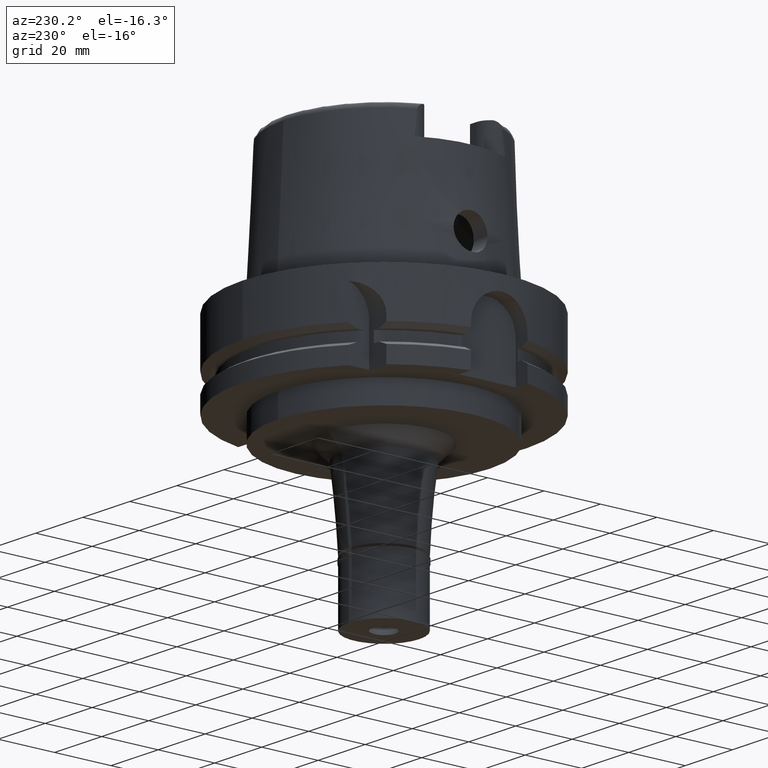
[diagram: clean part render]
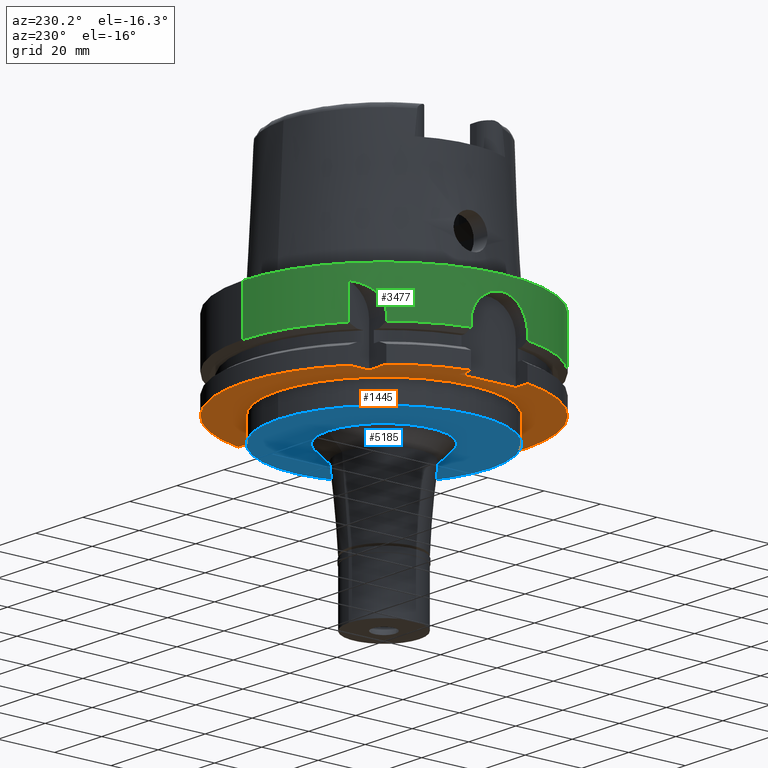
[diagram: same view with three faces highlighted in distinct colors, each labeled with its STEP entity id]
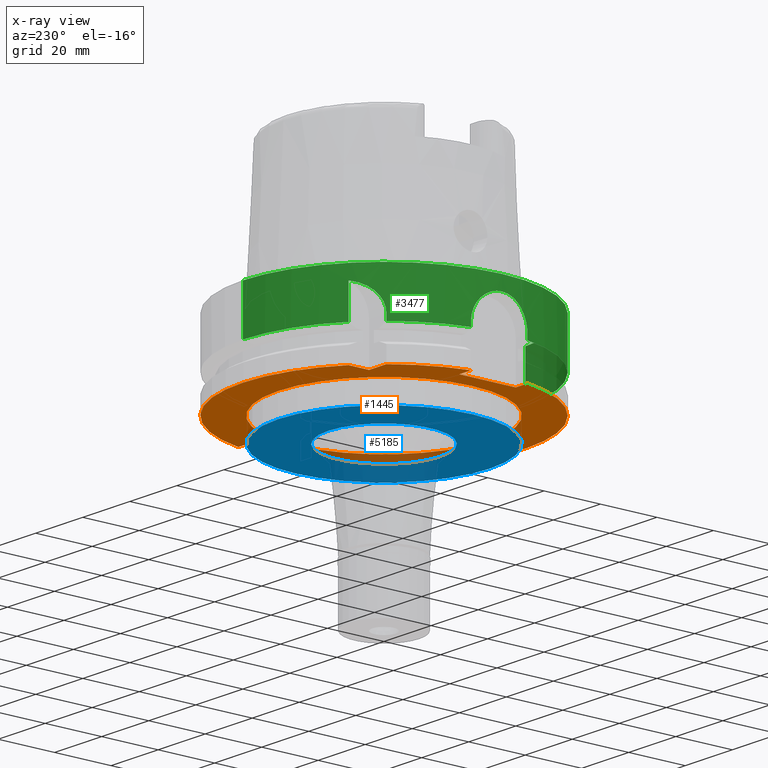
[diagram: x-ray of the same camera — body ghosted, the three highlighted faces saturated]
A machine part, auxiliary view with three faces highlighted in distinct colors.
The next image is the same camera in x-ray (body ghosted, the three faces saturated) — at least one of them is partly hidden behind the body in this view.
Their STEP definitions:

[orange] entity #1445 — the highlighted planar face has unit normal (0, 0, 1).
#19 = ORIENTED_EDGE ( 'NONE', *, *, #3860, .T. ) ;
#111 = CARTESIAN_POINT ( 'NONE',  ( 48.77499359303000404, -11.00000000000000000, -29.00000000000000000 ) ) ;
#133 = CIRCLE ( 'NONE', #1492, 50.00000000000000000 ) ;
#141 = CARTESIAN_POINT ( 'NONE',  ( -48.98979485565999425, 10.00000000000000000, -29.00000000000000000 ) ) ;
#150 = VECTOR ( 'NONE', #4453, 1000.000000000000000 ) ;
#195 = EDGE_CURVE ( 'NONE', #1272, #3100, #2616, .T. ) ;
#205 = ORIENTED_EDGE ( 'NONE', *, *, #685, .T. ) ;
#264 = EDGE_CURVE ( 'NONE', #3100, #4477, #966, .T. ) ;
#420 = EDGE_CURVE ( 'NONE', #4766, #2049, #4843, .T. ) ;
#426 = AXIS2_PLACEMENT_3D ( 'NONE', #4104, #5421, #1554 ) ;
#459 = DIRECTION ( 'NONE',  ( 0.0000000000000000000, 1.000000000000000000, 0.0000000000000000000 ) ) ;
#493 = VERTEX_POINT ( 'NONE', #2366 ) ;
#525 = CARTESIAN_POINT ( 'NONE',  ( -31.50000000000000000, 38.82975663071000128, -29.00000000000000000 ) ) ;
#565 = CARTESIAN_POINT ( 'NONE',  ( -31.50000000000000000, 31.50000000000000000, -29.00000000000000000 ) ) ;
#601 = CARTESIAN_POINT ( 'NONE',  ( 0.0000000000000000000, 37.50000000000000000, -29.00000000000000000 ) ) ;
#685 = EDGE_CURVE ( 'NONE', #777, #1690, #5562, .T. ) ;
#691 = CARTESIAN_POINT ( 'NONE',  ( 44.00000000000000000, -11.00000000000000000, -29.00000000000000000 ) ) ;
#694 = CIRCLE ( 'NONE', #3059, 37.50000000000000000 ) ;
#777 = VERTEX_POINT ( 'NONE', #5156 ) ;
#818 = DIRECTION ( 'NONE',  ( 0.0000000000000000000, 0.0000000000000000000, 1.000000000000000000 ) ) ;
#963 = CARTESIAN_POINT ( 'NONE',  ( 44.00000000000000000, 11.00000000000000000, -29.00000000000000000 ) ) ;
#966 = CIRCLE ( 'NONE', #426, 50.00000000000000000 ) ;
#1050 = VERTEX_POINT ( 'NONE', #2013 ) ;
#1054 = CARTESIAN_POINT ( 'NONE',  ( 0.0000000000000000000, 0.0000000000000000000, -29.00000000000000000 ) ) ;
#1126 = DIRECTION ( 'NONE',  ( 0.0000000000000000000, -1.000000000000000000, 0.0000000000000000000 ) ) ;
#1143 = CARTESIAN_POINT ( 'NONE',  ( 0.0000000000000000000, 0.0000000000000000000, -29.00000000000000000 ) ) ;
#1164 = VERTEX_POINT ( 'NONE', #601 ) ;
#1200 = EDGE_CURVE ( 'NONE', #493, #1978, #5333, .T. ) ;
#1272 = VERTEX_POINT ( 'NONE', #4079 ) ;
#1445 = ADVANCED_FACE ( 'NONE', ( #5454, #1472 ), #2348, .F. ) ;
#1472 = FACE_BOUND ( 'NONE', #4824, .T. ) ;
#1492 = AXIS2_PLACEMENT_3D ( 'NONE', #1143, #1592, #1920 ) ;
#1532 = DIRECTION ( 'NONE',  ( 0.0000000000000000000, 0.0000000000000000000, 1.000000000000000000 ) ) ;
#1554 = DIRECTION ( 'NONE',  ( 0.0000000000000000000, -1.000000000000000000, 0.0000000000000000000 ) ) ;
#1571 = CIRCLE ( 'NONE', #4408, 50.00000000000000711 ) ;
#1592 = DIRECTION ( 'NONE',  ( 0.0000000000000000000, 0.0000000000000000000, 1.000000000000000000 ) ) ;
#1620 = LINE ( 'NONE', #5104, #3873 ) ;
#1651 = CARTESIAN_POINT ( 'NONE',  ( 44.00000000000000000, -11.00000000000000000, -29.00000000000000000 ) ) ;
#1690 = VERTEX_POINT ( 'NONE', #141 ) ;
#1696 = VECTOR ( 'NONE', #4049, 1000.000000000000000 ) ;
#1697 = CARTESIAN_POINT ( 'NONE',  ( -44.00000000000000000, -10.00000000000000000, -29.00000000000000000 ) ) ;
#1722 = DIRECTION ( 'NONE',  ( 0.0000000000000000000, 1.000000000000000000, 0.0000000000000000000 ) ) ;
#1771 = DIRECTION ( 'NONE',  ( 1.000000000000000000, -1.785659532940000023E-14, 0.0000000000000000000 ) ) ;
#1813 = LINE ( 'NONE', #1697, #2026 ) ;
#1854 = EDGE_LOOP ( 'NONE', ( #3029, #2029, #3888, #19, #4299, #2805, #4123, #205, #3917, #3272, #3159 ) ) ;
#1920 = DIRECTION ( 'NONE',  ( 0.0000000000000000000, 1.000000000000000000, 0.0000000000000000000 ) ) ;
#1960 = AXIS2_PLACEMENT_3D ( 'NONE', #1054, #1532, #2784 ) ;
#1978 = VERTEX_POINT ( 'NONE', #525 ) ;
#2013 = CARTESIAN_POINT ( 'NONE',  ( 48.77499359303000404, 11.00000000000000000, -29.00000000000000000 ) ) ;
#2026 = VECTOR ( 'NONE', #1722, 1000.000000000000000 ) ;
#2029 = ORIENTED_EDGE ( 'NONE', *, *, #5385, .F. ) ;
#2049 = VERTEX_POINT ( 'NONE', #1651 ) ;
#2225 = VECTOR ( 'NONE', #5269, 1000.000000000000000 ) ;
#2348 = PLANE ( 'NONE',  #1960 ) ;
#2357 = CARTESIAN_POINT ( 'NONE',  ( -48.98979485565999425, -10.00000000000000000, -29.00000000000000000 ) ) ;
#2366 = CARTESIAN_POINT ( 'NONE',  ( -31.50000000000000000, 31.50000000000000000, -29.00000000000000000 ) ) ;
#2394 = DIRECTION ( 'NONE',  ( 0.0000000000000000000, 0.0000000000000000000, -1.000000000000000000 ) ) ;
#2474 = VERTEX_POINT ( 'NONE', #5445 ) ;
#2537 = DIRECTION ( 'NONE',  ( -0.7765951326141738997, 0.6299999999999789102, 0.0000000000000000000 ) ) ;
#2616 = LINE ( 'NONE', #4375, #150 ) ;
#2784 = DIRECTION ( 'NONE',  ( 1.000000000000000000, 0.0000000000000000000, 0.0000000000000000000 ) ) ;
#2805 = ORIENTED_EDGE ( 'NONE', *, *, #195, .F. ) ;
#2900 = DIRECTION ( 'NONE',  ( -1.000000000000000000, -4.798503851105999980E-14, 0.0000000000000000000 ) ) ;
#2916 = CARTESIAN_POINT ( 'NONE',  ( 0.0000000000000000000, 0.0000000000000000000, -29.00000000000000000 ) ) ;
#2938 = VERTEX_POINT ( 'NONE', #2981 ) ;
#2944 = EDGE_CURVE ( 'NONE', #2474, #1690, #1571, .T. ) ;
#2952 = DIRECTION ( 'NONE',  ( -1.000000000000000000, 4.627973610177000155E-14, 0.0000000000000000000 ) ) ;
#2956 = VECTOR ( 'NONE', #5484, 1000.000000000000000 ) ;
#2981 = CARTESIAN_POINT ( 'NONE',  ( 0.0000000000000000000, -37.50000000000000000, -29.00000000000000000 ) ) ;
#3029 = ORIENTED_EDGE ( 'NONE', *, *, #3402, .F. ) ;
#3047 = VECTOR ( 'NONE', #1771, 1000.000000000000000 ) ;
#3059 = AXIS2_PLACEMENT_3D ( 'NONE', #2916, #2394, #1126 ) ;
#3100 = VERTEX_POINT ( 'NONE', #2357 ) ;
#3139 = CIRCLE ( 'NONE', #4791, 37.50000000000000000 ) ;
#3159 = ORIENTED_EDGE ( 'NONE', *, *, #1200, .T. ) ;
#3272 = ORIENTED_EDGE ( 'NONE', *, *, #4064, .F. ) ;
#3369 = ORIENTED_EDGE ( 'NONE', *, *, #4929, .F. ) ;
#3402 = EDGE_CURVE ( 'NONE', #1050, #1978, #133, .T. ) ;
#3462 = DIRECTION ( 'NONE',  ( 0.0000000000000000000, 0.0000000000000000000, -1.000000000000000000 ) ) ;
#3586 = CARTESIAN_POINT ( 'NONE',  ( 44.00000000000000000, 11.00000000000000000, -29.00000000000000000 ) ) ;
#3614 = EDGE_CURVE ( 'NONE', #1272, #777, #1813, .T. ) ;
#3860 = EDGE_CURVE ( 'NONE', #2049, #4477, #5428, .T. ) ;
#3873 = VECTOR ( 'NONE', #2900, 1000.000000000000000 ) ;
#3888 = ORIENTED_EDGE ( 'NONE', *, *, #420, .T. ) ;
#3917 = ORIENTED_EDGE ( 'NONE', *, *, #2944, .F. ) ;
#4049 = DIRECTION ( 'NONE',  ( 4.798503851105999980E-14, 1.000000000000000000, 0.0000000000000000000 ) ) ;
#4064 = EDGE_CURVE ( 'NONE', #493, #2474, #1620, .T. ) ;
#4079 = CARTESIAN_POINT ( 'NONE',  ( -44.00000000000000000, -10.00000000000000000, -29.00000000000000000 ) ) ;
#4104 = CARTESIAN_POINT ( 'NONE',  ( 0.0000000000000000000, 0.0000000000000000000, -29.00000000000000000 ) ) ;
#4123 = ORIENTED_EDGE ( 'NONE', *, *, #3614, .T. ) ;
#4233 = ORIENTED_EDGE ( 'NONE', *, *, #4354, .F. ) ;
#4299 = ORIENTED_EDGE ( 'NONE', *, *, #264, .F. ) ;
#4354 = EDGE_CURVE ( 'NONE', #1164, #2938, #3139, .T. ) ;
#4375 = CARTESIAN_POINT ( 'NONE',  ( -44.00000000000000000, -10.00000000000000000, -29.00000000000000000 ) ) ;
#4408 = AXIS2_PLACEMENT_3D ( 'NONE', #4727, #818, #2537 ) ;
#4453 = DIRECTION ( 'NONE',  ( -1.000000000000000000, -4.627973610177000155E-14, 0.0000000000000000000 ) ) ;
#4477 = VERTEX_POINT ( 'NONE', #111 ) ;
#4727 = CARTESIAN_POINT ( 'NONE',  ( 0.0000000000000000000, 0.0000000000000000000, -29.00000000000000000 ) ) ;
#4766 = VERTEX_POINT ( 'NONE', #963 ) ;
#4768 = CARTESIAN_POINT ( 'NONE',  ( 0.0000000000000000000, 0.0000000000000000000, -29.00000000000000000 ) ) ;
#4791 = AXIS2_PLACEMENT_3D ( 'NONE', #4768, #3462, #459 ) ;
#4824 = EDGE_LOOP ( 'NONE', ( #4233, #3369 ) ) ;
#4843 = LINE ( 'NONE', #3586, #2225 ) ;
#4929 = EDGE_CURVE ( 'NONE', #2938, #1164, #694, .T. ) ;
#5069 = VECTOR ( 'NONE', #2952, 1000.000000000000000 ) ;
#5104 = CARTESIAN_POINT ( 'NONE',  ( -31.50000000000000000, 31.50000000000000000, -29.00000000000000000 ) ) ;
#5156 = CARTESIAN_POINT ( 'NONE',  ( -44.00000000000000000, 10.00000000000000000, -29.00000000000000000 ) ) ;
#5208 = CARTESIAN_POINT ( 'NONE',  ( 44.00000000000000000, 11.00000000000000000, -29.00000000000000000 ) ) ;
#5266 = LINE ( 'NONE', #5208, #3047 ) ;
#5269 = DIRECTION ( 'NONE',  ( 0.0000000000000000000, -1.000000000000000000, 0.0000000000000000000 ) ) ;
#5333 = LINE ( 'NONE', #565, #1696 ) ;
#5385 = EDGE_CURVE ( 'NONE', #4766, #1050, #5266, .T. ) ;
#5421 = DIRECTION ( 'NONE',  ( 0.0000000000000000000, 0.0000000000000000000, 1.000000000000000000 ) ) ;
#5428 = LINE ( 'NONE', #691, #2956 ) ;
#5445 = CARTESIAN_POINT ( 'NONE',  ( -38.82975663071000128, 31.50000000000000000, -29.00000000000000000 ) ) ;
#5454 = FACE_OUTER_BOUND ( 'NONE', #1854, .T. ) ;
#5484 = DIRECTION ( 'NONE',  ( 1.000000000000000000, 1.711257052401000108E-14, 0.0000000000000000000 ) ) ;
#5562 = LINE ( 'NONE', #5622, #5069 ) ;
#5622 = CARTESIAN_POINT ( 'NONE',  ( -44.00000000000000000, 10.00000000000000000, -29.00000000000000000 ) ) ;

[blue] entity #5185 — the highlighted planar face has unit normal (0, 0, 1).
#99 = DIRECTION ( 'NONE',  ( 0.0000000000000000000, 1.000000000000000000, 0.0000000000000000000 ) ) ;
#123 = CARTESIAN_POINT ( 'NONE',  ( 0.0000000000000000000, 0.0000000000000000000, -37.00000000000000000 ) ) ;
#351 = ORIENTED_EDGE ( 'NONE', *, *, #4523, .F. ) ;
#453 = EDGE_LOOP ( 'NONE', ( #1946, #3705 ) ) ;
#497 = AXIS2_PLACEMENT_3D ( 'NONE', #123, #982, #1841 ) ;
#499 = FACE_BOUND ( 'NONE', #453, .T. ) ;
#614 = CARTESIAN_POINT ( 'NONE',  ( 0.0000000000000000000, -19.83594731614000395, -37.00000000000000000 ) ) ;
#835 = VERTEX_POINT ( 'NONE', #614 ) ;
#925 = FACE_OUTER_BOUND ( 'NONE', #1224, .T. ) ;
#951 = AXIS2_PLACEMENT_3D ( 'NONE', #4003, #3604, #99 ) ;
#955 = DIRECTION ( 'NONE',  ( 0.0000000000000000000, 0.0000000000000000000, 1.000000000000000000 ) ) ;
#982 = DIRECTION ( 'NONE',  ( 0.0000000000000000000, 0.0000000000000000000, -1.000000000000000000 ) ) ;
#1224 = EDGE_LOOP ( 'NONE', ( #3086, #351 ) ) ;
#1405 = PLANE ( 'NONE',  #3142 ) ;
#1575 = CIRCLE ( 'NONE', #3524, 19.83594731614000395 ) ;
#1581 = CIRCLE ( 'NONE', #951, 37.50000000000000000 ) ;
#1677 = CIRCLE ( 'NONE', #2396, 37.50000000000000000 ) ;
#1841 = DIRECTION ( 'NONE',  ( 0.0000000000000000000, -1.000000000000000000, 0.0000000000000000000 ) ) ;
#1859 = CARTESIAN_POINT ( 'NONE',  ( 0.0000000000000000000, 0.0000000000000000000, -37.00000000000000000 ) ) ;
#1874 = CARTESIAN_POINT ( 'NONE',  ( 0.0000000000000000000, 0.0000000000000000000, -37.00000000000000000 ) ) ;
#1887 = DIRECTION ( 'NONE',  ( 0.0000000000000000000, -1.000000000000000000, 0.0000000000000000000 ) ) ;
#1946 = ORIENTED_EDGE ( 'NONE', *, *, #4811, .F. ) ;
#2301 = CARTESIAN_POINT ( 'NONE',  ( 0.0000000000000000000, 19.83594731614000395, -37.00000000000000000 ) ) ;
#2396 = AXIS2_PLACEMENT_3D ( 'NONE', #1859, #4128, #1887 ) ;
#2742 = CARTESIAN_POINT ( 'NONE',  ( 0.0000000000000000000, 0.0000000000000000000, -37.00000000000000000 ) ) ;
#2951 = CIRCLE ( 'NONE', #497, 19.83594731614000395 ) ;
#3086 = ORIENTED_EDGE ( 'NONE', *, *, #3658, .F. ) ;
#3094 = CARTESIAN_POINT ( 'NONE',  ( 0.0000000000000000000, -37.50000000000000000, -37.00000000000000000 ) ) ;
#3142 = AXIS2_PLACEMENT_3D ( 'NONE', #1874, #955, #4861 ) ;
#3244 = DIRECTION ( 'NONE',  ( 0.0000000000000000000, 1.000000000000000000, 0.0000000000000000000 ) ) ;
#3519 = EDGE_CURVE ( 'NONE', #835, #3702, #2951, .T. ) ;
#3524 = AXIS2_PLACEMENT_3D ( 'NONE', #2742, #5354, #3244 ) ;
#3604 = DIRECTION ( 'NONE',  ( 0.0000000000000000000, 0.0000000000000000000, 1.000000000000000000 ) ) ;
#3658 = EDGE_CURVE ( 'NONE', #3913, #5394, #1581, .T. ) ;
#3702 = VERTEX_POINT ( 'NONE', #2301 ) ;
#3705 = ORIENTED_EDGE ( 'NONE', *, *, #3519, .F. ) ;
#3913 = VERTEX_POINT ( 'NONE', #4137 ) ;
#4003 = CARTESIAN_POINT ( 'NONE',  ( 0.0000000000000000000, 0.0000000000000000000, -37.00000000000000000 ) ) ;
#4128 = DIRECTION ( 'NONE',  ( 0.0000000000000000000, 0.0000000000000000000, 1.000000000000000000 ) ) ;
#4137 = CARTESIAN_POINT ( 'NONE',  ( 0.0000000000000000000, 37.50000000000000000, -37.00000000000000000 ) ) ;
#4523 = EDGE_CURVE ( 'NONE', #5394, #3913, #1677, .T. ) ;
#4811 = EDGE_CURVE ( 'NONE', #3702, #835, #1575, .T. ) ;
#4861 = DIRECTION ( 'NONE',  ( 1.000000000000000000, 0.0000000000000000000, 0.0000000000000000000 ) ) ;
#5185 = ADVANCED_FACE ( 'NONE', ( #925, #499 ), #1405, .F. ) ;
#5354 = DIRECTION ( 'NONE',  ( 0.0000000000000000000, 0.0000000000000000000, -1.000000000000000000 ) ) ;
#5394 = VERTEX_POINT ( 'NONE', #3094 ) ;

[green] entity #3477 — the highlighted cylindrical surface (partial cylindrical patch) has radius 50 mm, axis along (0, 0, 1).
#18 = B_SPLINE_CURVE_WITH_KNOTS ( 'NONE', 3,
 ( #4985, #2313, #4922, #4446, #4501, #1820, #1075, #1013, #4070, #219, #532, #3668, #167, #5447, #1880, #3583, #2364, #4559, #3642, #3205, #2690, #4536, #2339, #4097, #644, #1938, #3273, #2255, #4010, #5320, #1414, #4898, #988, #2715, #2018, #2514, #1994, #3727, #3813, #2949, #3359, #673, #2056, #1212, #5586, #5475, #2862, #5561, #2082, #2890, #1549, #3750, #335, #5067 ),
 .UNSPECIFIED., .F., .F.,
 ( 4, 2, 2, 2, 2, 2, 2, 2, 2, 2, 2, 2, 2, 2, 2, 2, 2, 2, 2, 2, 2, 2, 2, 2, 2, 2, 4 ),
 ( 0.0000000000000000000, 0.03125000000000003469, 0.06250000000000006939, 0.1250000000000001110, 0.1875000000000001388, 0.2187500000000001943, 0.2500000000000002220, 0.2812500000000002776, 0.3125000000000002776, 0.3437500000000003331, 0.3750000000000003331, 0.4062500000000003331, 0.4375000000000003331, 0.5000000000000002220, 0.5312500000000001110, 0.5625000000000002220, 0.5937500000000002220, 0.6250000000000002220, 0.6562500000000003331, 0.6875000000000003331, 0.7187500000000003331, 0.7500000000000003331, 0.8125000000000003331, 0.8750000000000003331, 0.9062500000000002220, 0.9375000000000001110, 1.000000000000000000 ),
 .UNSPECIFIED. ) ;
#27 = EDGE_CURVE ( 'NONE', #3287, #2081, #375, .T. ) ;
#79 = CARTESIAN_POINT ( 'NONE',  ( -31.50000000000000000, 38.82975663071000128, -5.000000000003000267 ) ) ;
#98 = DIRECTION ( 'NONE',  ( 0.0000000000000000000, -1.000000000000000000, 0.0000000000000000000 ) ) ;
#167 = CARTESIAN_POINT ( 'NONE',  ( -49.46402646853832863, 7.305184000900602825, -8.163237007348140395 ) ) ;
#219 = CARTESIAN_POINT ( 'NONE',  ( -49.33322137804879759, 8.140496473599080574, -9.182651765820173395 ) ) ;
#297 = CARTESIAN_POINT ( 'NONE',  ( -38.47997079558596312, 31.92636510314522624, -11.74787043263201092 ) ) ;
#329 = CARTESIAN_POINT ( 'NONE',  ( -38.33757111435397036, 32.09787207311011059, -11.19154603774881629 ) ) ;
#335 = CARTESIAN_POINT ( 'NONE',  ( -48.98979485566343328, -10.00000000000062172, -14.34992636891093554 ) ) ;
#349 = CARTESIAN_POINT ( 'NONE',  ( 0.0000000000000000000, 0.0000000000000000000, -90.48999999999999488 ) ) ;
#367 = ORIENTED_EDGE ( 'NONE', *, *, #4834, .T. ) ;
#375 = LINE ( 'NONE', #4804, #3700 ) ;
#384 = CARTESIAN_POINT ( 'NONE',  ( -35.13739759001914109, 35.57195556603519293, -6.583427702169577955 ) ) ;
#389 = CARTESIAN_POINT ( 'NONE',  ( -48.98979485565999425, 10.00000000000000000, -16.75240473580999989 ) ) ;
#439 = ORIENTED_EDGE ( 'NONE', *, *, #27, .T. ) ;
#532 = CARTESIAN_POINT ( 'NONE',  ( -49.36522353530786233, 7.944764735771467912, -8.917965014434022564 ) ) ;
#608 = DIRECTION ( 'NONE',  ( 0.0000000000000000000, 0.0000000000000000000, -1.000000000000000000 ) ) ;
#644 = CARTESIAN_POINT ( 'NONE',  ( -49.95007296249472972, 2.256697800569568813, -5.252537339675011019 ) ) ;
#673 = CARTESIAN_POINT ( 'NONE',  ( -49.56373229003720127, -6.595625868857655227, -7.476172084618818658 ) ) ;
#707 = CARTESIAN_POINT ( 'NONE',  ( 0.0000000000000000000, -50.00000000000000000, -1.184237892933999964E-13 ) ) ;
#727 = CARTESIAN_POINT ( 'NONE',  ( -36.69780596123717231, 33.96397178405493378, -8.040723193263872304 ) ) ;
#751 = CARTESIAN_POINT ( 'NONE',  ( -38.49469862022275635, 31.90860439111117230, -11.80739350622106620 ) ) ;
#793 = DIRECTION ( 'NONE',  ( 3.933032361779000221E-13, -2.534170336197999844E-14, 1.000000000000000000 ) ) ;
#804 = ORIENTED_EDGE ( 'NONE', *, *, #2058, .T. ) ;
#808 = ORIENTED_EDGE ( 'NONE', *, *, #4305, .T. ) ;
#815 = CARTESIAN_POINT ( 'NONE',  ( -35.32041692344933637, 35.39038474167411152, -6.719788668799609788 ) ) ;
#869 = DIRECTION ( 'NONE',  ( 0.0000000000000000000, 0.0000000000000000000, 1.000000000000000000 ) ) ;
#923 = LINE ( 'NONE', #2218, #2650 ) ;
#988 = CARTESIAN_POINT ( 'NONE',  ( -49.93455893158447623, -2.576326564035913869, -5.331990395739927280 ) ) ;
#1013 = CARTESIAN_POINT ( 'NONE',  ( -49.18453679201155637, 8.997008707026116880, -10.58560031123586853 ) ) ;
#1030 = ORIENTED_EDGE ( 'NONE', *, *, #1879, .T. ) ;
#1063 = EDGE_CURVE ( 'NONE', #1607, #2859, #5463, .T. ) ;
#1075 = CARTESIAN_POINT ( 'NONE',  ( -49.09036018454668948, 9.497439763984470318, -11.80158618427492989 ) ) ;
#1115 = CIRCLE ( 'NONE', #1476, 50.00000000000000711 ) ;
#1179 = CARTESIAN_POINT ( 'NONE',  ( -37.41676156284319887, 33.16611061519277825, -9.109386526794292394 ) ) ;
#1206 = CARTESIAN_POINT ( 'NONE',  ( -37.33738325379316336, 33.25538688994014080, -8.977692303141827423 ) ) ;
#1212 = CARTESIAN_POINT ( 'NONE',  ( -49.43022059887680797, -7.541711222667776937, -8.400035818733631032 ) ) ;
#1301 = AXIS2_PLACEMENT_3D ( 'NONE', #3172, #608, #98 ) ;
#1305 = ORIENTED_EDGE ( 'NONE', *, *, #1958, .F. ) ;
#1327 = CARTESIAN_POINT ( 'NONE',  ( -31.50000000000000000, 38.82975663071000128, -5.000000000003000267 ) ) ;
#1414 = CARTESIAN_POINT ( 'NONE',  ( -49.97485841623518610, -1.617643659042722781, -5.126307811638941558 ) ) ;
#1476 = AXIS2_PLACEMENT_3D ( 'NONE', #2733, #1870, #5341 ) ;
#1549 = CARTESIAN_POINT ( 'NONE',  ( -49.04050012748192700, -9.748510700173222077, -12.74779322322640596 ) ) ;
#1568 = CARTESIAN_POINT ( 'NONE',  ( -37.88732973421159755, 32.62788131711061368, -10.01611298790198923 ) ) ;
#1602 = CARTESIAN_POINT ( 'NONE',  ( -38.70813330467706948, 31.64946695257081544, -12.89643728846885651 ) ) ;
#1607 = VERTEX_POINT ( 'NONE', #2662 ) ;
#1608 = CARTESIAN_POINT ( 'NONE',  ( -48.98979485565999425, -10.00000000000000000, -16.75240473580999989 ) ) ;
#1647 = DIRECTION ( 'NONE',  ( 0.0000000000000000000, -2.969006079282000197E-14, -1.000000000000000000 ) ) ;
#1658 = CARTESIAN_POINT ( 'NONE',  ( -35.96278927559898619, 34.73848163899911867, -7.264243377741039787 ) ) ;
#1780 = VERTEX_POINT ( 'NONE', #2299 ) ;
#1781 = DIRECTION ( 'NONE',  ( 0.0000000000000000000, 1.000000000000000000, 0.0000000000000000000 ) ) ;
#1820 = CARTESIAN_POINT ( 'NONE',  ( -49.05327106856115194, 9.684690085528718129, -12.42418889650314284 ) ) ;
#1836 = EDGE_CURVE ( 'NONE', #5125, #5078, #1115, .T. ) ;
#1870 = DIRECTION ( 'NONE',  ( 0.0000000000000000000, 0.0000000000000000000, 1.000000000000000000 ) ) ;
#1879 = EDGE_CURVE ( 'NONE', #5635, #3287, #2103, .T. ) ;
#1880 = CARTESIAN_POINT ( 'NONE',  ( -49.56392084514536123, 6.594210339440433444, -7.474928745218226922 ) ) ;
#1938 = CARTESIAN_POINT ( 'NONE',  ( -49.98727337604294263, 1.297072131884470902, -5.063079227123304271 ) ) ;
#1958 = EDGE_CURVE ( 'NONE', #5125, #1607, #4085, .T. ) ;
#1991 = EDGE_CURVE ( 'NONE', #2528, #5078, #923, .T. ) ;
#1994 = CARTESIAN_POINT ( 'NONE',  ( -49.80582381222811961, -4.411840447473319493, -6.019770980953926376 ) ) ;
#2018 = CARTESIAN_POINT ( 'NONE',  ( -49.87788521341418146, -3.505694118459036002, -5.628880875401276462 ) ) ;
#2056 = CARTESIAN_POINT ( 'NONE',  ( -49.53067426088642122, -6.838737925735862255, -7.696485171463535835 ) ) ;
#2058 = EDGE_CURVE ( 'NONE', #1780, #2600, #4318, .T. ) ;
#2081 = VERTEX_POINT ( 'NONE', #4808 ) ;
#2082 = CARTESIAN_POINT ( 'NONE',  ( -49.09278989258839943, -9.481937093884813095, -11.80611569221511559 ) ) ;
#2103 = CIRCLE ( 'NONE', #1301, 50.00000000000000000 ) ;
#2104 = CARTESIAN_POINT ( 'NONE',  ( -34.12531048832258307, 36.57120011502345136, -5.849377811790712478 ) ) ;
#2134 = CARTESIAN_POINT ( 'NONE',  ( 0.0000000000000000000, 0.0000000000000000000, -16.75240473580999989 ) ) ;
#2218 = CARTESIAN_POINT ( 'NONE',  ( -48.98979485565999425, 10.00000000000000000, -15.00000000000000000 ) ) ;
#2255 = CARTESIAN_POINT ( 'NONE',  ( -49.99999360500560641, -0.3269239678294747486, -5.000048098238602634 ) ) ;
#2299 = CARTESIAN_POINT ( 'NONE',  ( -48.98979485565999425, -10.00000000000000000, -16.75240473580999989 ) ) ;
#2313 = CARTESIAN_POINT ( 'NONE',  ( -48.98979485566343328, 10.00000000000068390, -14.67477384672370100 ) ) ;
#2332 = LINE ( 'NONE', #79, #2660 ) ;
#2339 = CARTESIAN_POINT ( 'NONE',  ( -49.89857304296576501, 3.198445865227089069, -5.519613993474083991 ) ) ;
#2364 = CARTESIAN_POINT ( 'NONE',  ( -49.66109665971372067, 5.818199470677055452, -6.860273031121066012 ) ) ;
#2424 = DIRECTION ( 'NONE',  ( 0.0000000000000000000, 2.969006079282000197E-14, -1.000000000000000000 ) ) ;
#2443 = CARTESIAN_POINT ( 'NONE',  ( -37.78243679805195399, 32.74938215351403414, -9.790032876202097611 ) ) ;
#2497 = DIRECTION ( 'NONE',  ( 0.0000000000000000000, 0.0000000000000000000, 1.000000000000000000 ) ) ;
#2507 = CARTESIAN_POINT ( 'NONE',  ( -38.79935079920176833, 31.53769344909538574, -13.63626533275515129 ) ) ;
#2514 = CARTESIAN_POINT ( 'NONE',  ( -49.83132479518986457, -4.114898998883623982, -5.879966185470741458 ) ) ;
#2528 = VERTEX_POINT ( 'NONE', #4984 ) ;
#2600 = VERTEX_POINT ( 'NONE', #5473 ) ;
#2650 = VECTOR ( 'NONE', #3979, 1000.000000000000000 ) ;
#2660 = VECTOR ( 'NONE', #3112, 1000.000000000000114 ) ;
#2662 = CARTESIAN_POINT ( 'NONE',  ( -38.82975663071000128, 31.50000000000000000, -14.63689785921000031 ) ) ;
#2690 = CARTESIAN_POINT ( 'NONE',  ( -49.83161392523056321, 4.111256529898119183, -5.878401453227974471 ) ) ;
#2707 = EDGE_LOOP ( 'NONE', ( #4622, #1305, #3837, #3823, #367, #4247, #804, #2819, #1030, #439, #808, #2914 ) ) ;
#2715 = CARTESIAN_POINT ( 'NONE',  ( -49.89845962713047811, -3.200212664194285406, -5.520212011311194544 ) ) ;
#2733 = CARTESIAN_POINT ( 'NONE',  ( 0.0000000000000000000, 0.0000000000000000000, -16.75240473580999989 ) ) ;
#2766 = CARTESIAN_POINT ( 'NONE',  ( -48.98979485565999425, -10.00000000000000000, -15.00000000000000000 ) ) ;
#2819 = ORIENTED_EDGE ( 'NONE', *, *, #4966, .F. ) ;
#2859 = VERTEX_POINT ( 'NONE', #1327 ) ;
#2862 = CARTESIAN_POINT ( 'NONE',  ( -49.18424439192180131, -8.998583427525339573, -10.58912033888666393 ) ) ;
#2886 = CARTESIAN_POINT ( 'NONE',  ( -38.17726744247195114, 32.28919485948167534, -10.70934904803826271 ) ) ;
#2890 = CARTESIAN_POINT ( 'NONE',  ( -49.05614964883081797, -9.669712101284865469, -12.42999805995558837 ) ) ;
#2914 = ORIENTED_EDGE ( 'NONE', *, *, #2976, .F. ) ;
#2941 = CARTESIAN_POINT ( 'NONE',  ( -37.02111501768128221, 33.60982185922073739, -8.467975620822217664 ) ) ;
#2949 = CARTESIAN_POINT ( 'NONE',  ( -49.66071698589643546, -5.821521321421013084, -6.862562852904170896 ) ) ;
#2976 = EDGE_CURVE ( 'NONE', #2859, #4487, #2332, .T. ) ;
#2978 = CARTESIAN_POINT ( 'NONE',  ( -36.15390999473768119, 34.53934222790255149, -7.451874981477679682 ) ) ;
#2990 = VERTEX_POINT ( 'NONE', #2766 ) ;
#3112 = DIRECTION ( 'NONE',  ( -3.028824622550074284E-07, -2.457086204960059947E-07, -0.9999999999999239497 ) ) ;
#3172 = CARTESIAN_POINT ( 'NONE',  ( 0.0000000000000000000, 0.0000000000000000000, -1.989519660127999812E-13 ) ) ;
#3205 = CARTESIAN_POINT ( 'NONE',  ( -49.80597247480899625, 4.410163543088209792, -6.018949576889943920 ) ) ;
#3236 = CIRCLE ( 'NONE', #3970, 50.00000000000000000 ) ;
#3273 = CARTESIAN_POINT ( 'NONE',  ( -50.00001276120485016, 0.6509093675188917238, -4.999956924248007084 ) ) ;
#3287 = VERTEX_POINT ( 'NONE', #5639 ) ;
#3322 = CARTESIAN_POINT ( 'NONE',  ( -35.50698474048477493, 35.20361681686578237, -6.865942669184641467 ) ) ;
#3354 = CARTESIAN_POINT ( 'NONE',  ( -38.67012601529176408, 31.69591732081527979, -12.65147180230602864 ) ) ;
#3359 = CARTESIAN_POINT ( 'NONE',  ( -49.62881521159334852, -6.086586877219528624, -7.058779781998448577 ) ) ;
#3372 = DIRECTION ( 'NONE',  ( 0.0000000000000000000, 1.000000000000000000, 0.0000000000000000000 ) ) ;
#3381 = CARTESIAN_POINT ( 'NONE',  ( -37.36139970084590800, 33.22841629593970225, -9.017051408682018376 ) ) ;
#3408 = CARTESIAN_POINT ( 'NONE',  ( -35.66137510143256861, 35.04694617297116110, -6.996437305827941877 ) ) ;
#3409 = CARTESIAN_POINT ( 'NONE',  ( 0.0000000000000000000, -50.00000000000000000, -1.989519660127999812E-13 ) ) ;
#3477 = ADVANCED_FACE ( 'NONE', ( #4679 ), #4255, .T. ) ;
#3514 = CARTESIAN_POINT ( 'NONE',  ( 0.0000000000000000000, 0.0000000000000000000, -16.75240473580999989 ) ) ;
#3583 = CARTESIAN_POINT ( 'NONE',  ( -49.62899891494355842, 6.085090487835675077, -7.057631952576929102 ) ) ;
#3642 = CARTESIAN_POINT ( 'NONE',  ( -49.75134977747793386, 4.988750540692706181, -6.326968285705508954 ) ) ;
#3659 = DIRECTION ( 'NONE',  ( 3.166955095344913800E-07, 3.903884141554897929E-07, 0.9999999999998735456 ) ) ;
#3668 = CARTESIAN_POINT ( 'NONE',  ( -49.43056103556367731, 7.527563822850313002, -8.408713046767699595 ) ) ;
#3700 = VECTOR ( 'NONE', #1647, 1000.000000000000000 ) ;
#3727 = CARTESIAN_POINT ( 'NONE',  ( -49.75118674890807569, -4.990374617595829676, -6.327904852817181514 ) ) ;
#3750 = CARTESIAN_POINT ( 'NONE',  ( -49.00274337469998187, -9.937182510806511715, -13.70561547083140752 ) ) ;
#3774 = AXIS2_PLACEMENT_3D ( 'NONE', #349, #2497, #3372 ) ;
#3775 = CARTESIAN_POINT ( 'NONE',  ( -37.32130785914284132, 33.27342660662408491, -8.951500506007405988 ) ) ;
#3808 = CARTESIAN_POINT ( 'NONE',  ( -37.61272684370310060, 32.94378570754680879, -9.459297044517294140 ) ) ;
#3813 = CARTESIAN_POINT ( 'NONE',  ( -49.72224263843126124, -5.270247532519865885, -6.495087439147431141 ) ) ;
#3823 = ORIENTED_EDGE ( 'NONE', *, *, #1991, .F. ) ;
#3837 = ORIENTED_EDGE ( 'NONE', *, *, #1836, .T. ) ;
#3864 = CARTESIAN_POINT ( 'NONE',  ( -32.91545983713196222, 37.68148817016703589, -5.318168386525138125 ) ) ;
#3893 = DIRECTION ( 'NONE',  ( -0.9797958971132723072, -0.1999999999999946265, 0.0000000000000000000 ) ) ;
#3952 = CARTESIAN_POINT ( 'NONE',  ( -38.82975730067999365, 31.49999917413000361, -16.75240773889999701 ) ) ;
#3970 = AXIS2_PLACEMENT_3D ( 'NONE', #3514, #4374, #1781 ) ;
#3979 = DIRECTION ( 'NONE',  ( -4.014125812537999910E-13, -2.635537149646000036E-14, -1.000000000000000000 ) ) ;
#4010 = CARTESIAN_POINT ( 'NONE',  ( -49.99680002002529022, -0.6514146689907360788, -5.015875041971509241 ) ) ;
#4070 = CARTESIAN_POINT ( 'NONE',  ( -49.24057617454467106, 8.689264381284511174, -10.00689432263757261 ) ) ;
#4085 = LINE ( 'NONE', #4464, #4494 ) ;
#4097 = CARTESIAN_POINT ( 'NONE',  ( -49.93465246831760851, 2.574515594304664479, -5.331509912841207566 ) ) ;
#4200 = CARTESIAN_POINT ( 'NONE',  ( -38.47284387375224668, 31.93495451973409871, -11.71954264603348150 ) ) ;
#4247 = ORIENTED_EDGE ( 'NONE', *, *, #4924, .F. ) ;
#4255 = CYLINDRICAL_SURFACE ( 'NONE', #3774, 50.00000000000000000 ) ;
#4266 = CARTESIAN_POINT ( 'NONE',  ( -38.56465578724758103, 31.82407434868882845, -12.10638150988525119 ) ) ;
#4294 = CARTESIAN_POINT ( 'NONE',  ( -35.14332904359132925, 35.56609541617311976, -6.587745870290603989 ) ) ;
#4305 = EDGE_CURVE ( 'NONE', #2081, #4487, #3236, .T. ) ;
#4318 = CIRCLE ( 'NONE', #5126, 49.99999999999997868 ) ;
#4374 = DIRECTION ( 'NONE',  ( 0.0000000000000000000, 0.0000000000000000000, 1.000000000000000000 ) ) ;
#4446 = CARTESIAN_POINT ( 'NONE',  ( -49.00580010131367459, 9.921319867194130282, -13.70617931160537140 ) ) ;
#4464 = CARTESIAN_POINT ( 'NONE',  ( -38.82975730067999365, 31.49999917413000361, -16.75240773889999701 ) ) ;
#4487 = VERTEX_POINT ( 'NONE', #4928 ) ;
#4494 = VECTOR ( 'NONE', #3659, 1000.000000000000227 ) ;
#4501 = CARTESIAN_POINT ( 'NONE',  ( -49.01532077360069195, 9.874334691798129171, -13.38637230121983634 ) ) ;
#4536 = CARTESIAN_POINT ( 'NONE',  ( -49.87786566908138752, 3.505808458107193548, -5.628992301551436483 ) ) ;
#4559 = CARTESIAN_POINT ( 'NONE',  ( -49.72222128286315979, 5.270358358214861205, -6.495232976551731596 ) ) ;
#4583 = LINE ( 'NONE', #707, #4881 ) ;
#4622 = ORIENTED_EDGE ( 'NONE', *, *, #1063, .F. ) ;
#4662 = CARTESIAN_POINT ( 'NONE',  ( -38.60171289439824704, 31.77910422309246385, -12.28749926671195958 ) ) ;
#4679 = FACE_OUTER_BOUND ( 'NONE', #2707, .T. ) ;
#4723 = CARTESIAN_POINT ( 'NONE',  ( -35.15707735803368905, 35.55250576318957201, -6.597782008956720290 ) ) ;
#4804 = CARTESIAN_POINT ( 'NONE',  ( 0.0000000000000000000, 50.00000000000000000, -1.184237892933999964E-13 ) ) ;
#4808 = CARTESIAN_POINT ( 'NONE',  ( 1.065814103639999922E-14, 50.00000000000000000, -16.75240473580999989 ) ) ;
#4834 = EDGE_CURVE ( 'NONE', #2528, #2990, #18, .T. ) ;
#4881 = VECTOR ( 'NONE', #2424, 1000.000000000000000 ) ;
#4898 = CARTESIAN_POINT ( 'NONE',  ( -49.94994066468479588, -2.259794752817469998, -5.253209555805469222 ) ) ;
#4922 = CARTESIAN_POINT ( 'NONE',  ( -48.99301409864091283, 9.984267675071089698, -14.35096447838951228 ) ) ;
#4924 = EDGE_CURVE ( 'NONE', #1780, #2990, #5038, .T. ) ;
#4928 = CARTESIAN_POINT ( 'NONE',  ( -31.50000355958999876, 38.82975374304999860, -16.75239179145000179 ) ) ;
#4966 = EDGE_CURVE ( 'NONE', #5635, #2600, #4583, .T. ) ;
#4984 = CARTESIAN_POINT ( 'NONE',  ( -48.98979485565999425, 10.00000000000000000, -15.00000000000000000 ) ) ;
#4985 = CARTESIAN_POINT ( 'NONE',  ( -48.98979485565999425, 10.00000000000000000, -15.00000000000000000 ) ) ;
#5038 = LINE ( 'NONE', #1608, #5246 ) ;
#5062 = CARTESIAN_POINT ( 'NONE',  ( -35.17767105412016804, 35.53213788880531609, -6.612863868418402902 ) ) ;
#5067 = CARTESIAN_POINT ( 'NONE',  ( -48.98979485565999425, -10.00000000000000000, -15.00000000000000000 ) ) ;
#5078 = VERTEX_POINT ( 'NONE', #389 ) ;
#5088 = CARTESIAN_POINT ( 'NONE',  ( -38.82975663071000128, 31.50000000000000000, -14.63689785921000031 ) ) ;
#5116 = CARTESIAN_POINT ( 'NONE',  ( -38.82975663071001549, 31.49999999999999289, -14.13607113755899647 ) ) ;
#5125 = VERTEX_POINT ( 'NONE', #3952 ) ;
#5126 = AXIS2_PLACEMENT_3D ( 'NONE', #2134, #869, #3893 ) ;
#5146 = CARTESIAN_POINT ( 'NONE',  ( -35.22552158261586897, 35.48472963931506285, -6.648248226317045706 ) ) ;
#5246 = VECTOR ( 'NONE', #793, 1000.000000000000000 ) ;
#5320 = CARTESIAN_POINT ( 'NONE',  ( -49.98420942202844230, -1.297367244915106577, -5.079122034242770312 ) ) ;
#5341 = DIRECTION ( 'NONE',  ( -0.7765951326141738997, 0.6299999999999789102, 0.0000000000000000000 ) ) ;
#5447 = CARTESIAN_POINT ( 'NONE',  ( -49.53074240762870062, 6.838214994895060350, -7.696049756172469003 ) ) ;
#5463 = B_SPLINE_CURVE_WITH_KNOTS ( 'NONE', 3,
 ( #5088, #5116, #2507, #1602, #3354, #4662, #4266, #5556, #751, #297, #4200, #329, #2886, #1568, #2443, #3808, #5525, #1179, #3381, #1206, #3775, #5582, #2941, #727, #2978, #1658, #3408, #3322, #815, #5146, #5062, #4723, #4294, #384, #2104, #3864, #5612 ),
 .UNSPECIFIED., .F., .F.,
 ( 4, 2, 2, 1, 1, 2, 2, 2, 2, 1, 1, 1, 2, 2, 2, 2, 1, 1, 1, 1, 2, 2, 4 ),
 ( 0.0000000000000000000, 0.1249999999999921729, 0.1874999999999879263, 0.2187499999999858169, 0.2343749999999847067, 0.2421874999999841793, 0.2499999999999836242, 0.3749999999999749645, 0.4374999999999704681, 0.4687499999999683031, 0.4843749999999667488, 0.4921874999999659162, 0.4960937499999660272, 0.4999999999999661937, 0.6249999999999802380, 0.6874999999999880096, 0.7187499999999918954, 0.7343749999999937828, 0.7421874999999946709, 0.7460937499999947820, 0.7480468749999944489, 0.7499999999999941158, 1.000000000000000000 ),
 .UNSPECIFIED. ) ;
#5473 = CARTESIAN_POINT ( 'NONE',  ( 0.0000000000000000000, -50.00000000000000000, -16.75240473580999989 ) ) ;
#5475 = CARTESIAN_POINT ( 'NONE',  ( -49.24041324777746809, -8.690181341251232539, -10.00850486959623886 ) ) ;
#5525 = CARTESIAN_POINT ( 'NONE',  ( -37.52477922900138907, 33.04402464122811978, -9.296024057537454865 ) ) ;
#5556 = CARTESIAN_POINT ( 'NONE',  ( -38.51643403883997507, 31.88237590371373997, -11.89681351920342323 ) ) ;
#5561 = CARTESIAN_POINT ( 'NONE',  ( -49.11383813249523200, -9.372673253755635869, -11.49857013436666797 ) ) ;
#5582 = CARTESIAN_POINT ( 'NONE',  ( -37.31401146962881654, 33.28160933487631468, -8.939674139674020026 ) ) ;
#5586 = CARTESIAN_POINT ( 'NONE',  ( -49.36390707118802368, -7.958783023983245108, -8.909500093796783204 ) ) ;
#5612 = CARTESIAN_POINT ( 'NONE',  ( -31.50000000000000000, 38.82975663071000128, -5.000000000003000267 ) ) ;
#5635 = VERTEX_POINT ( 'NONE', #3409 ) ;
#5639 = CARTESIAN_POINT ( 'NONE',  ( 0.0000000000000000000, 50.00000000000000000, -1.184237892933999964E-13 ) ) ;